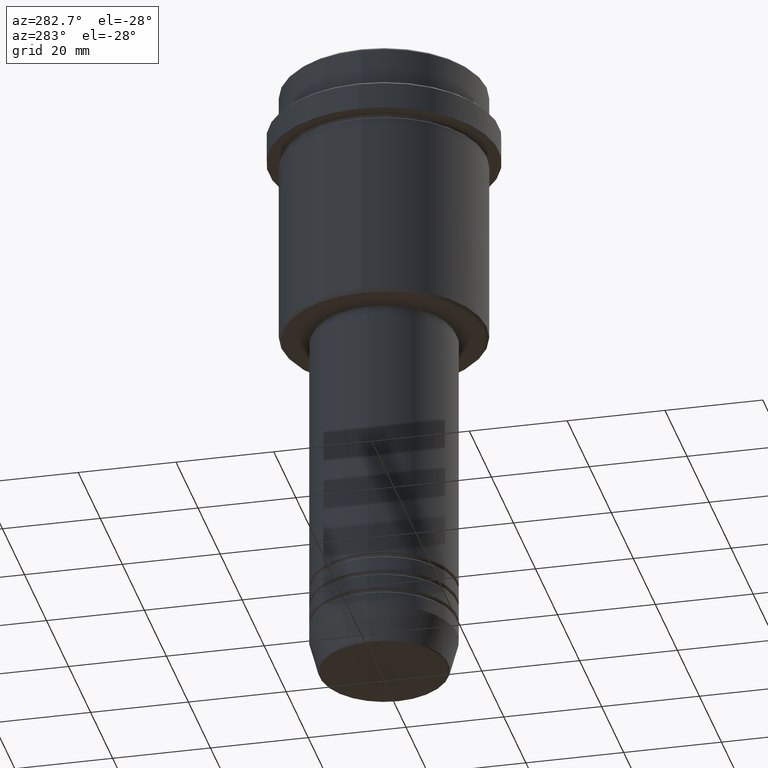
[diagram: clean part render]
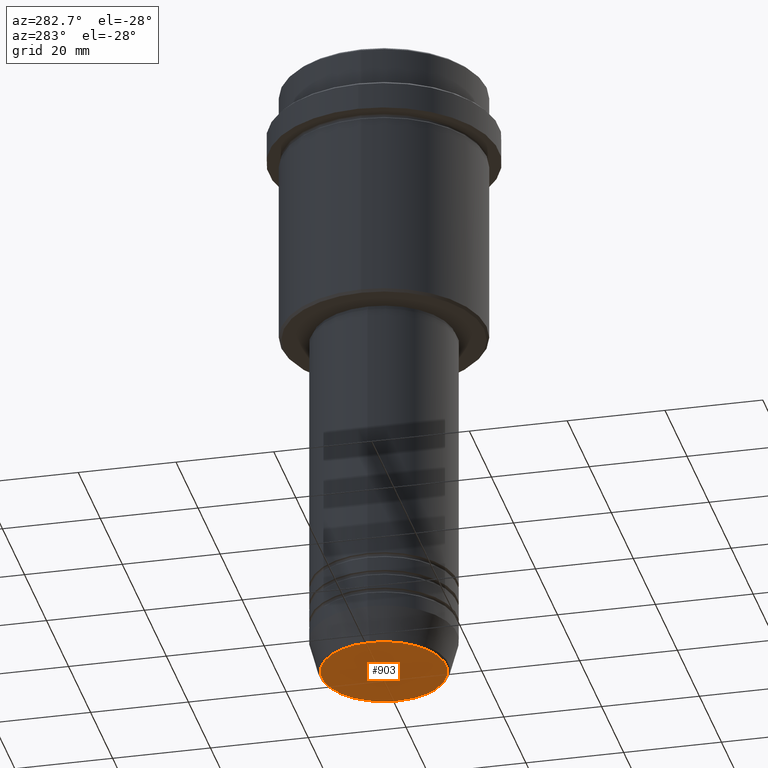
[diagram: same view with one face highlighted and labeled with its STEP entity id]
A machine part, auxiliary view. The second image highlights one B-rep face of the part: STEP entity #903.
In plain terms, the highlighted planar face has unit normal (0, -0, 1).
Its self-contained STEP definition (entity closure, byte-faithful):
#27 = PLANE ( 'NONE',  #763 ) ;
#54 = CARTESIAN_POINT ( 'NONE',  ( -12.74069215899265473, 1.589857736427680640E-15, -130.0000000000000000 ) ) ;
#83 = EDGE_LOOP ( 'NONE', ( #1152, #347 ) ) ;
#135 = DIRECTION ( 'NONE',  ( 1.000000000000000000, 0.000000000000000000, 0.000000000000000000 ) ) ;
#279 = CARTESIAN_POINT ( 'NONE',  ( 12.74069215899265473, 0.000000000000000000, -130.0000000000000000 ) ) ;
#284 = AXIS2_PLACEMENT_3D ( 'NONE', #291, #594, #625 ) ;
#291 = CARTESIAN_POINT ( 'NONE',  ( 0.000000000000000000, 0.000000000000000000, -130.0000000000000000 ) ) ;
#347 = ORIENTED_EDGE ( 'NONE', *, *, #889, .T. ) ;
#357 = FACE_OUTER_BOUND ( 'NONE', #83, .T. ) ;
#465 = CARTESIAN_POINT ( 'NONE',  ( 0.000000000000000000, 0.000000000000000000, -130.0000000000000000 ) ) ;
#480 = DIRECTION ( 'NONE',  ( 1.000000000000000000, 0.000000000000000000, 0.000000000000000000 ) ) ;
#594 = DIRECTION ( 'NONE',  ( 0.000000000000000000, 0.000000000000000000, -1.000000000000000000 ) ) ;
#625 = DIRECTION ( 'NONE',  ( 1.000000000000000000, 0.000000000000000000, 0.000000000000000000 ) ) ;
#656 = VERTEX_POINT ( 'NONE', #279 ) ;
#693 = DIRECTION ( 'NONE',  ( 0.000000000000000000, 0.000000000000000000, -1.000000000000000000 ) ) ;
#700 = CARTESIAN_POINT ( 'NONE',  ( 0.000000000000000000, 0.000000000000000000, -130.0000000000000000 ) ) ;
#763 = AXIS2_PLACEMENT_3D ( 'NONE', #700, #797, #480 ) ;
#797 = DIRECTION ( 'NONE',  ( 0.000000000000000000, -0.000000000000000000, 1.000000000000000000 ) ) ;
#889 = EDGE_CURVE ( 'NONE', #921, #656, #1390, .T. ) ;
#900 = CIRCLE ( 'NONE', #284, 12.74069215899265473 ) ;
#903 = ADVANCED_FACE ( 'NONE', ( #357 ), #27, .F. ) ;
#921 = VERTEX_POINT ( 'NONE', #54 ) ;
#1152 = ORIENTED_EDGE ( 'NONE', *, *, #1315, .T. ) ;
#1315 = EDGE_CURVE ( 'NONE', #656, #921, #900, .T. ) ;
#1382 = AXIS2_PLACEMENT_3D ( 'NONE', #465, #693, #135 ) ;
#1390 = CIRCLE ( 'NONE', #1382, 12.74069215899265473 ) ;